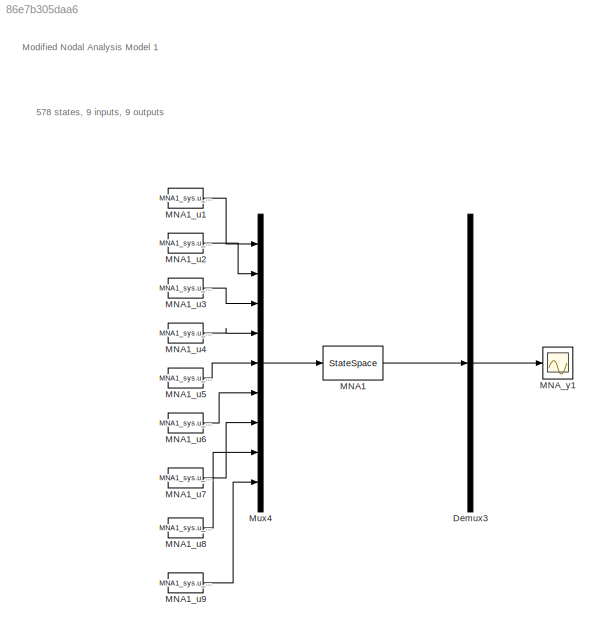
MODEL slx_86e7b305daa6
KIND model
BLOCK [Demux] Demux3
  DisplayOption = bar
  Outputs = 1
  Ports = [1, 1]
BLOCK [StateSpace] MNA1
  A = MNA1_sys.sys.a
  B = MNA1_sys.sys.b
  C = MNA1_sys.sys.c
  D = MNA1_sys.sys.d
  Ports = [1, 1]
  X0 = MNA1_sys.x0_lb
BLOCK [Constant] MNA1_u1
  Value = MNA1_sys.u_ub(1)
BLOCK [Constant] MNA1_u2
  Value = MNA1_sys.u_ub(2)
BLOCK [Constant] MNA1_u3
  Value = MNA1_sys.u_ub(3)
BLOCK [Constant] MNA1_u4
  Value = MNA1_sys.u_ub(4)
BLOCK [Constant] MNA1_u5
  Value = MNA1_sys.u_ub(5)
BLOCK [Constant] MNA1_u6
  Value = MNA1_sys.u_ub(6)
BLOCK [Constant] MNA1_u7
  Value = MNA1_sys.u_ub(7)
BLOCK [Constant] MNA1_u8
  Value = MNA1_sys.u_ub(8)
BLOCK [Constant] MNA1_u9
  Value = MNA1_sys.u_ub(9)
BLOCK [Scope] MNA_y1
  Floating = off
  LimitDataPoints = off
  NumInputPorts = 1
  Ports = [1]
  SaveName = ScopeData13
  ShowLegends = off
BLOCK [Mux] Mux4
  DisplayOption = bar
  Inputs = 9
  Ports = [9, 1]
ANNOTATION (root): 578 states, 9 inputs, 9 outputs
ANNOTATION (root): Modified Nodal Analysis Model 1
LINE Demux3:1 -> MNA_y1:1
LINE MNA1:1 -> Demux3:1
LINE MNA1_u1:1 -> Mux4:1
LINE MNA1_u2:1 -> Mux4:2
LINE MNA1_u3:1 -> Mux4:3
LINE MNA1_u4:1 -> Mux4:4
LINE MNA1_u5:1 -> Mux4:5
LINE MNA1_u6:1 -> Mux4:6
LINE MNA1_u7:1 -> Mux4:7
LINE MNA1_u8:1 -> Mux4:8
LINE MNA1_u9:1 -> Mux4:9
LINE Mux4:1 -> MNA1:1
